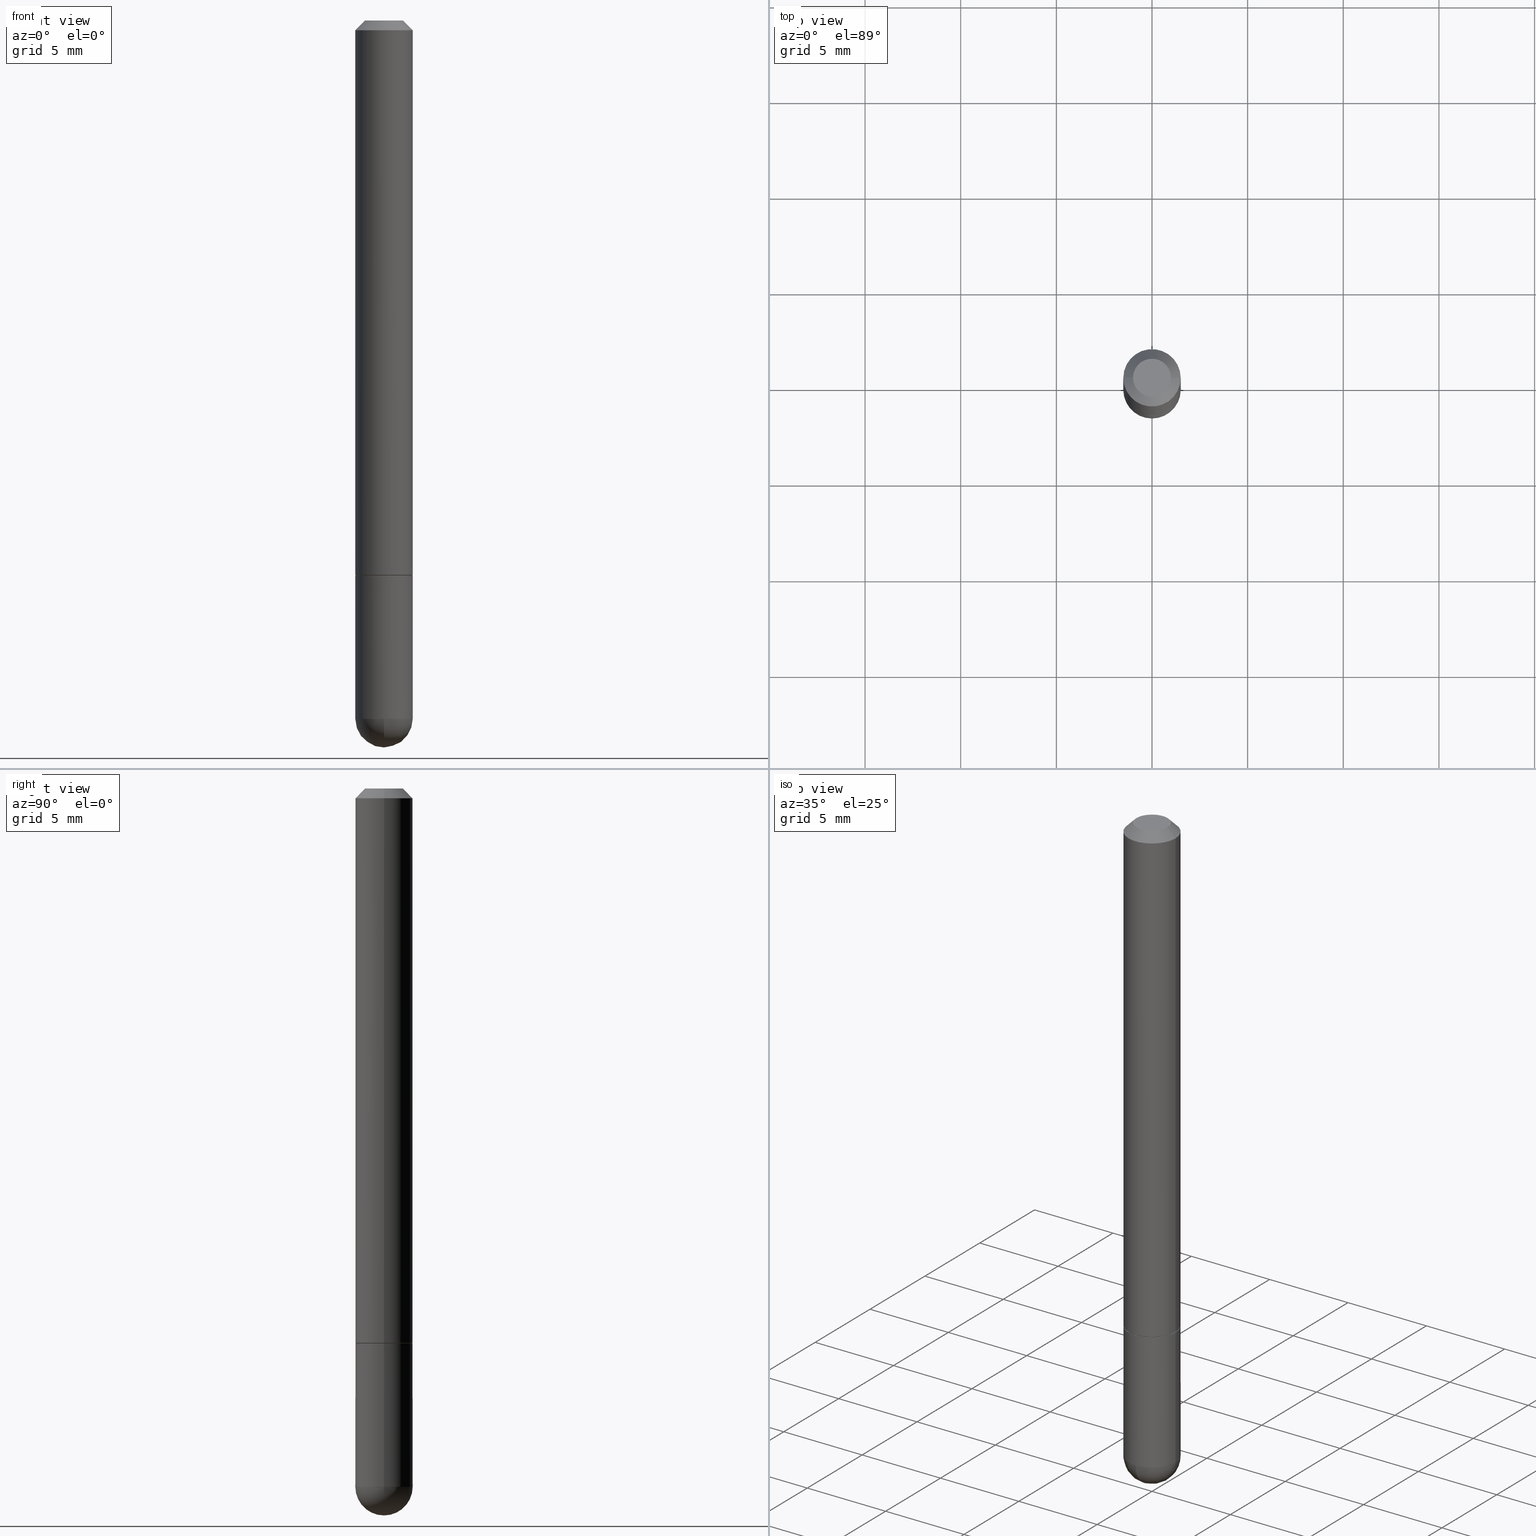
[diagram: canonical four-view strip — front | top / right | iso, engineering-drawing reading convention]
A machine part, canonical four-view strip (front | top / right | iso — engineering-drawing reading convention). The complete STEP part file that produces these views, byte-faithful:
ISO-10303-21;
HEADER;
FILE_DESCRIPTION (( 'STEP AP203' ),
    '1' );
FILE_NAME ('01969.STEP',
    '2024-02-21T16:34:36',
    ( '' ),
    ( '' ),
    'SwSTEP 2.0',
    'SolidWorks 2023',
    '' );
FILE_SCHEMA (( 'CONFIG_CONTROL_DESIGN' ));
ENDSEC;

DATA;
#1 = EDGE_CURVE ( 'NONE', #112, #306, #370, .T. ) ;
#2 = CARTESIAN_POINT ( 'NONE',  ( 2.792236282902188505E-29, -3.986573392691103322E-15, -1.141799999999999926 ) ) ;
#3 = CARTESIAN_POINT ( 'NONE',  ( 0.000000000000000000, 0.000000000000000000, 0.000000000000000000 ) ) ;
#4 = CIRCLE ( 'NONE', #158, 0.05905000000000025506 ) ;
#5 = CARTESIAN_POINT ( 'NONE',  ( -0.05905000000000000526, 3.425143193405111289E-16, -0.02000000000000002123 ) ) ;
#6 = ORIENTED_EDGE ( 'NONE', *, *, #290, .F. ) ;
#7 = EDGE_CURVE ( 'NONE', #365, #232, #308, .T. ) ;
#8 = CARTESIAN_POINT ( 'NONE',  ( -0.05905000000000007465, 4.195754854663396902E-16, -2.904631170795525395E-30 ) ) ;
#9 = ORIENTED_EDGE ( 'NONE', *, *, #78, .T. ) ;
#10 = PERSON_AND_ORGANIZATION ( #188, #404 ) ;
#11 = EDGE_LOOP ( 'NONE', ( #105, #75, #262, #384, #236 ) ) ;
#12 = APPROVAL_ROLE ( '' ) ;
#13 = DIRECTION ( 'NONE',  ( -1.000000000000000000, 7.105427357601001070E-15, -4.926315508542082329E-29 ) ) ;
#14 = ORIENTED_EDGE ( 'NONE', *, *, #141, .T. ) ;
#15 = DATE_AND_TIME ( #167, #82 ) ;
#16 = PRODUCT_DEFINITION ( 'UNKNOWN', '', #159, #322 ) ;
#17 = EDGE_LOOP ( 'NONE', ( #133, #58 ) ) ;
#18 = EDGE_CURVE ( 'NONE', #232, #365, #211, .T. ) ;
#19 = VERTEX_POINT ( 'NONE', #81 ) ;
#20 = CARTESIAN_POINT ( 'NONE',  ( 2.789790814096003463E-29, -3.983081911352260315E-15, -1.140799999999999814 ) ) ;
#21 = ORIENTED_EDGE ( 'NONE', *, *, #390, .T. ) ;
#22 = AXIS2_PLACEMENT_3D ( 'NONE', #259, #263, #354 ) ;
#23 = AXIS2_PLACEMENT_3D ( 'NONE', #407, #179, #139 ) ;
#24 = CARTESIAN_POINT ( 'NONE',  ( -0.05904999999999999832, 4.195754854663391478E-16, -2.904631170795521892E-30 ) ) ;
#25 = DIRECTION ( 'NONE',  ( 1.000000000000000000, -6.982962677686266711E-15, 4.878561691827482436E-29 ) ) ;
#26 = APPLICATION_CONTEXT ( 'configuration controlled 3d designs of mechanical parts and assemblies' ) ;
#27 = CIRCLE ( 'NONE', #109, 0.05905000000000000526 ) ;
#28 = CC_DESIGN_SECURITY_CLASSIFICATION ( #190, ( #159 ) ) ;
#29 = LINE ( 'NONE', #270, #123 ) ;
#30 = CARTESIAN_POINT ( 'NONE',  ( -0.05905000000000001914, -4.082427839871483465E-15, -1.437049999999999939 ) ) ;
#31 = DIRECTION ( 'NONE',  ( -1.000000000000000000, 6.982962677686265922E-15, -4.883557194083112340E-29 ) ) ;
#32 = CARTESIAN_POINT ( 'NONE',  ( 4.123439461174018893E-16, 0.05904999999999601540, -1.141800000000000148 ) ) ;
#33 = ADVANCED_FACE ( 'NONE', ( #396 ), #309, .F. ) ;
#34 = EDGE_LOOP ( 'NONE', ( #298, #391, #14, #145 ) ) ;
#35 = AXIS2_PLACEMENT_3D ( 'NONE', #116, #248, #220 ) ;
#36 = DIRECTION ( 'NONE',  ( -0.7071067811865467956, 2.468850131082249172E-15, -0.7071067811865482389 ) ) ;
#37 = ORIENTED_EDGE ( 'NONE', *, *, #7, .T. ) ;
#38 = PERSON_AND_ORGANIZATION_ROLE ( 'classification_officer' ) ;
#39 = ORIENTED_EDGE ( 'NONE', *, *, #86, .F. ) ;
#40 = COORDINATED_UNIVERSAL_TIME_OFFSET ( 5, 0, .BEHIND. ) ;
#41 = MANIFOLD_SOLID_BREP ( 'Body-Move/Copy2[1]', #284 ) ;
#42 = LINE ( 'NONE', #44, #189 ) ;
#43 = CIRCLE ( 'NONE', #35, 0.03905000000000004301 ) ;
#44 = CARTESIAN_POINT ( 'NONE',  ( -0.05905000000000000526, 3.425143193405111289E-16, -0.02000000000000002123 ) ) ;
#45 = ADVANCED_FACE ( 'NONE', ( #281 ), #71, .T. ) ;
#46 = PERSON_AND_ORGANIZATION ( #188, #404 ) ;
#47 = CYLINDRICAL_SURFACE ( 'NONE', #247, 0.05904999999999999832 ) ;
#48 = EDGE_CURVE ( 'NONE', #140, #347, #104, .T. ) ;
#49 = CALENDAR_DATE ( 2024, 21, 2 ) ;
#50 = CARTESIAN_POINT ( 'NONE',  ( 0.05904999999999999832, -4.398917338808476664E-15, -1.141799999999999926 ) ) ;
#51 = AXIS2_PLACEMENT_3D ( 'NONE', #125, #261, #89 ) ;
#52 = AXIS2_PLACEMENT_3D ( 'NONE', #2, #386, #380 ) ;
#53 = EDGE_CURVE ( 'NONE', #144, #266, #43, .T. ) ;
#54 = DIRECTION ( 'NONE',  ( -2.445468806185136597E-29, 3.491481338843145583E-15, 1.000000000000000000 ) ) ;
#55 = PRODUCT_RELATED_PRODUCT_CATEGORY ( 'detail', '', ( #279 ) ) ;
#56 = ORIENTED_EDGE ( 'NONE', *, *, #141, .F. ) ;
#57 = CC_DESIGN_APPROVAL ( #397, ( #159 ) ) ;
#58 = ORIENTED_EDGE ( 'NONE', *, *, #7, .F. ) ;
#59 = DIRECTION ( 'NONE',  ( 1.000000000000000000, -6.982962677686265922E-15, 4.883557194083112340E-29 ) ) ;
#60 = CARTESIAN_POINT ( 'NONE',  ( 4.890937612370278413E-31, -6.982962677686297772E-17, -0.02000000000000002123 ) ) ;
#61 = CYLINDRICAL_SURFACE ( 'NONE', #169, 0.05904999999999999832 ) ;
#62 = CIRCLE ( 'NONE', #299, 0.05905000000000000526 ) ;
#63 = DIRECTION ( 'NONE',  ( 6.982962677686266711E-15, 1.000000000000000000, 0.000000000000000000 ) ) ;
#64 = CARTESIAN_POINT ( 'NONE',  ( 3.183141170014464762E-29, -5.491615626124592102E-15, -1.437049999999999939 ) ) ;
#65 = ADVANCED_FACE ( 'NONE', ( #343 ), #293, .T. ) ;
#66 = CYLINDRICAL_SURFACE ( 'NONE', #244, 0.05905000000000007465 ) ;
#67 = ORIENTED_EDGE ( 'NONE', *, *, #310, .T. ) ;
#68 = CC_DESIGN_PERSON_AND_ORGANIZATION_ASSIGNMENT ( #173, #273, ( #16 ) ) ;
#69 = DIRECTION ( 'NONE',  ( -2.445468806185136597E-29, 3.491481338843145583E-15, 1.000000000000000000 ) ) ;
#70 = DIRECTION ( 'NONE',  ( 2.445468806185136597E-29, -3.491481338843145583E-15, -1.000000000000000000 ) ) ;
#71 = CONICAL_SURFACE ( 'NONE', #392, 0.05804999999999999744, 0.7853981633976233612 ) ;
#72 = EDGE_LOOP ( 'NONE', ( #215, #119 ) ) ;
#73 = COORDINATED_UNIVERSAL_TIME_OFFSET ( 5, 0, .BEHIND. ) ;
#74 = APPLICATION_CONTEXT ( 'configuration controlled 3d designs of mechanical parts and assemblies' ) ;
#75 = ORIENTED_EDGE ( 'NONE', *, *, #219, .T. ) ;
#76 = ORIENTED_EDGE ( 'NONE', *, *, #219, .F. ) ;
#77 = APPROVAL_STATUS ( 'not_yet_approved' ) ;
#78 = EDGE_CURVE ( 'NONE', #99, #95, #27, .T. ) ;
#79 = DIRECTION ( 'NONE',  ( 0.7071067811866712516, -2.468850131083553553E-15, 0.7071067811864236718 ) ) ;
#80 = DIRECTION ( 'NONE',  ( -2.445468806185136597E-29, 3.491481338843145583E-15, 1.000000000000000000 ) ) ;
#81 = CARTESIAN_POINT ( 'NONE',  ( -0.05904999999999999832, -4.082427839871483465E-15, -1.141799999999999926 ) ) ;
#82 = LOCAL_TIME ( 11, 34, 36.00000000000000000, #73 ) ;
#83 = ORIENTED_EDGE ( 'NONE', *, *, #310, .F. ) ;
#84 = CIRCLE ( 'NONE', #137, 0.05905000000000000526 ) ;
#85 = AXIS2_PLACEMENT_3D ( 'NONE', #286, #389, #237 ) ;
#86 = EDGE_CURVE ( 'NONE', #347, #156, #152, .T. ) ;
#87 = DIRECTION ( 'NONE',  ( 1.000000000000000000, -6.982962677686266711E-15, 4.876176775795936353E-29 ) ) ;
#88 = CALENDAR_DATE ( 2024, 21, 2 ) ;
#89 = DIRECTION ( 'NONE',  ( 1.000000000000000000, -6.982962677686272233E-15, 0.000000000000000000 ) ) ;
#90 = LINE ( 'NONE', #283, #315 ) ;
#91 = CARTESIAN_POINT ( 'NONE',  ( -0.05804999999999999744, -3.568804880234141646E-15, -1.141799999999999704 ) ) ;
#92 = AXIS2_PLACEMENT_3D ( 'NONE', #96, #360, #349 ) ;
#93 = LOCAL_TIME ( 11, 34, 36.00000000000000000, #253 ) ;
#94 = CARTESIAN_POINT ( 'NONE',  ( 0.05905000000000007465, -4.123439461173745750E-16, 2.879382386107504074E-30 ) ) ;
#95 = VERTEX_POINT ( 'NONE', #387 ) ;
#96 = CARTESIAN_POINT ( 'NONE',  ( 3.514260947928350449E-29, -5.017433257984542594E-15, -1.437049999999999939 ) ) ;
#97 = DIRECTION ( 'NONE',  ( 1.000000000000000000, -6.982962677686266711E-15, 4.876176775795936353E-29 ) ) ;
#98 = DIRECTION ( 'NONE',  ( -2.445468806185136597E-29, 3.491481338843145583E-15, 1.000000000000000000 ) ) ;
#99 = VERTEX_POINT ( 'NONE', #30 ) ;
#100 = DIRECTION ( 'NONE',  ( 6.982962677686265922E-15, 1.000000000000000000, -4.626330217890349615E-15 ) ) ;
#101 = EDGE_CURVE ( 'NONE', #95, #112, #369, .T. ) ;
#102 = DATE_TIME_ROLE ( 'classification_date' ) ;
#103 = CLOSED_SHELL ( 'NONE', ( #45, #194, #375, #399, #180, #65, #260, #33 ) ) ;
#104 = CIRCLE ( 'NONE', #398, 0.05905000000000014404 ) ;
#105 = ORIENTED_EDGE ( 'NONE', *, *, #345, .T. ) ;
#106 = APPROVAL_ROLE ( '' ) ;
#107 = ORIENTED_EDGE ( 'NONE', *, *, #53, .T. ) ;
#108 = EDGE_CURVE ( 'NONE', #112, #359, #182, .T. ) ;
#109 = AXIS2_PLACEMENT_3D ( 'NONE', #155, #256, #129 ) ;
#110 = LOCAL_TIME ( 11, 34, 36.00000000000000000, #363 ) ;
#111 = CC_DESIGN_DATE_AND_TIME_ASSIGNMENT ( #208, #102, ( #190 ) ) ;
#112 = VERTEX_POINT ( 'NONE', #228 ) ;
#113 = EDGE_LOOP ( 'NONE', ( #107, #207 ) ) ;
#114 = VECTOR ( 'NONE', #348, 39.37007874015748854 ) ;
#115 = APPROVAL_PERSON_ORGANIZATION ( #295, #222, #187 ) ;
#116 = CARTESIAN_POINT ( 'NONE',  ( 3.131554243005667043E-46, -4.471029511141352822E-32, -1.280553747030126465E-17 ) ) ;
#117 = CC_DESIGN_PERSON_AND_ORGANIZATION_ASSIGNMENT ( #302, #38, ( #190 ) ) ;
#118 = CARTESIAN_POINT ( 'NONE',  ( 4.890937612370278413E-31, -6.982962677686297772E-17, -0.02000000000000002123 ) ) ;
#119 = ORIENTED_EDGE ( 'NONE', *, *, #406, .T. ) ;
#120 = EDGE_CURVE ( 'NONE', #266, #144, #339, .T. ) ;
#121 = LINE ( 'NONE', #379, #114 ) ;
#122 = APPROVAL_STATUS ( 'not_yet_approved' ) ;
#123 = VECTOR ( 'NONE', #79, 39.37007874015748854 ) ;
#124 = CONICAL_SURFACE ( 'NONE', #216, 0.05905000000000000526, 0.7853981633974472798 ) ;
#125 = CARTESIAN_POINT ( 'NONE',  ( 3.514260947928350449E-29, -5.017433257984542594E-15, -1.437049999999999939 ) ) ;
#126 = LENGTH_MEASURE_WITH_UNIT ( LENGTH_MEASURE( 0.02539999999999999897 ), #288 );
#127 = CARTESIAN_POINT ( 'NONE',  ( 3.183141170014464762E-29, -5.491615626124592102E-15, -1.437049999999999939 ) ) ;
#128 = PERSON_AND_ORGANIZATION_ROLE ( 'design_owner' ) ;
#129 = DIRECTION ( 'NONE',  ( 1.000000000000000000, -6.982962677686272233E-15, 0.000000000000000000 ) ) ;
#130 = FACE_OUTER_BOUND ( 'NONE', #135, .T. ) ;
#131 = AXIS2_PLACEMENT_3D ( 'NONE', #181, #291, #358 ) ;
#132 = CARTESIAN_POINT ( 'NONE',  ( 2.792236282902188505E-29, -3.986573392691103322E-15, -1.141799999999999926 ) ) ;
#133 = ORIENTED_EDGE ( 'NONE', *, *, #18, .F. ) ;
#134 = CARTESIAN_POINT ( 'NONE',  ( 4.123439461174083974E-16, 0.05904999999999487742, -1.437050000000000161 ) ) ;
#135 = EDGE_LOOP ( 'NONE', ( #166, #278, #356, #340 ) ) ;
#136 = PERSON_AND_ORGANIZATION_ROLE ( 'creator' ) ;
#137 = AXIS2_PLACEMENT_3D ( 'NONE', #318, #69, #383 ) ;
#138 = PERSON_AND_ORGANIZATION_ROLE ( 'design_supplier' ) ;
#139 = DIRECTION ( 'NONE',  ( -1.000000000000000000, 6.982962677686265922E-15, -4.876176775795935793E-29 ) ) ;
#140 = VERTEX_POINT ( 'NONE', #355 ) ;
#141 = EDGE_CURVE ( 'NONE', #156, #196, #84, .T. ) ;
#142 = APPROVAL_DATE_TIME ( #165, #209 ) ;
#143 = DIRECTION ( 'NONE',  ( -7.105427357601001070E-15, -1.000000000000000000, 0.000000000000000000 ) ) ;
#144 = VERTEX_POINT ( 'NONE', #184 ) ;
#145 = ORIENTED_EDGE ( 'NONE', *, *, #277, .F. ) ;
#146 = ADVANCED_FACE ( 'NONE', ( #289 ), #198, .F. ) ;
#147 = DIRECTION ( 'NONE',  ( -2.445468806185136877E-29, 3.491481338843145188E-15, 1.000000000000000000 ) ) ;
#148 = CARTESIAN_POINT ( 'NONE',  ( 3.183141170014464762E-29, -5.491615626124592102E-15, -1.437049999999999939 ) ) ;
#149 = FACE_OUTER_BOUND ( 'NONE', #336, .T. ) ;
#150 = AXIS2_PLACEMENT_3D ( 'NONE', #276, #213, #175 ) ;
#151 = LOCAL_TIME ( 11, 34, 36.00000000000000000, #40 ) ;
#152 = LINE ( 'NONE', #94, #275 ) ;
#153 = CARTESIAN_POINT ( 'NONE',  ( 3.514260947928350449E-29, -5.017433257984542594E-15, -1.437049999999999939 ) ) ;
#154 = CARTESIAN_POINT ( 'NONE',  ( 3.330070981488499955E-29, -5.694171829508798064E-15, -1.496100000000000207 ) ) ;
#155 = CARTESIAN_POINT ( 'NONE',  ( 3.514260947928350449E-29, -5.017433257984542594E-15, -1.437049999999999939 ) ) ;
#156 = VERTEX_POINT ( 'NONE', #287 ) ;
#157 = APPLICATION_PROTOCOL_DEFINITION ( 'international standard', 'config_control_design', 1994, #26 ) ;
#158 = AXIS2_PLACEMENT_3D ( 'NONE', #127, #59, #63 ) ;
#159 = PRODUCT_DEFINITION_FORMATION_WITH_SPECIFIED_SOURCE ( 'ANY', '', #279, .NOT_KNOWN. ) ;
#160 = LINE ( 'NONE', #8, #238 ) ;
#161 = ORIENTED_EDGE ( 'NONE', *, *, #251, .F. ) ;
#162 = PERSON_AND_ORGANIZATION ( #188, #404 ) ;
#163 = EDGE_CURVE ( 'NONE', #266, #156, #90, .T. ) ;
#164 = EDGE_LOOP ( 'NONE', ( #21, #319, #56, #39 ) ) ;
#165 = DATE_AND_TIME ( #366, #151 ) ;
#166 = ORIENTED_EDGE ( 'NONE', *, *, #274, .F. ) ;
#167 = CALENDAR_DATE ( 2024, 21, 2 ) ;
#168 = EDGE_CURVE ( 'NONE', #395, #359, #4, .T. ) ;
#169 = AXIS2_PLACEMENT_3D ( 'NONE', #186, #252, #225 ) ;
#170 = FACE_OUTER_BOUND ( 'NONE', #17, .T. ) ;
#171 = ORIENTED_EDGE ( 'NONE', *, *, #101, .T. ) ;
#172 = PERSON_AND_ORGANIZATION ( #188, #404 ) ;
#173 = PERSON_AND_ORGANIZATION ( #188, #404 ) ;
#174 = AXIS2_PLACEMENT_3D ( 'NONE', #212, #394, #206 ) ;
#175 = DIRECTION ( 'NONE',  ( 1.000000000000000000, -6.982962677686272233E-15, 0.000000000000000000 ) ) ;
#176 = LOCAL_TIME ( 11, 34, 36.00000000000000000, #331 ) ;
#177 = MANIFOLD_SOLID_BREP ( 'Body-Move/Copy2[2]', #103 ) ;
#178 = CARTESIAN_POINT ( 'NONE',  ( 0.05904999999999999832, -4.123439461173740327E-16, 2.879382386107500220E-30 ) ) ;
#179 = DIRECTION ( 'NONE',  ( 2.438088387897960049E-29, -3.491481338843145188E-15, -1.000000000000000000 ) ) ;
#180 = ADVANCED_FACE ( 'NONE', ( #149 ), #191, .T. ) ;
#181 = CARTESIAN_POINT ( 'NONE',  ( 2.792236282902187945E-29, -3.986573392691102533E-15, -1.141799999999999704 ) ) ;
#182 = CIRCLE ( 'NONE', #51, 0.05905000000000000526 ) ;
#183 = DIRECTION ( 'NONE',  ( -2.445468806185136877E-29, 3.491481338843145188E-15, 1.000000000000000000 ) ) ;
#184 = CARTESIAN_POINT ( 'NONE',  ( -0.03905000000000004301, 3.075995059520800222E-16, -1.280553747030329227E-17 ) ) ;
#185 =( NAMED_UNIT ( * ) SI_UNIT ( $, .STERADIAN. ) SOLID_ANGLE_UNIT ( ) );
#186 = CARTESIAN_POINT ( 'NONE',  ( 0.000000000000000000, 0.000000000000000000, 0.000000000000000000 ) ) ;
#187 = APPROVAL_ROLE ( '' ) ;
#188 = PERSON ( 'UNSPECIFIED', 'UNSPECIFIED', 'UNSPECIFIED', ('UNSPECIFIED'), ('UNSPECIFIED'), ('UNSPECIFIED') ) ;
#189 = VECTOR ( 'NONE', #36, 39.37007874015748143 ) ;
#190 = SECURITY_CLASSIFICATION ( '', '', #393 ) ;
#191 = CYLINDRICAL_SURFACE ( 'NONE', #303, 0.05905000000000007465 ) ;
#192 = DIRECTION ( 'NONE',  ( -2.445468806185136597E-29, 3.491481338843145583E-15, 1.000000000000000000 ) ) ;
#193 = CC_DESIGN_DATE_AND_TIME_ASSIGNMENT ( #15, #203, ( #16 ) ) ;
#194 = ADVANCED_FACE ( 'NONE', ( #316 ), #66, .T. ) ;
#195 = DIRECTION ( 'NONE',  ( 1.000000000000000000, -6.982962677686266711E-15, 4.876176775795936353E-29 ) ) ;
#196 = VERTEX_POINT ( 'NONE', #5 ) ;
#197 = FACE_OUTER_BOUND ( 'NONE', #361, .T. ) ;
#198 = PLANE ( 'NONE',  #324 ) ;
#199 = EDGE_CURVE ( 'NONE', #306, #19, #269, .T. ) ;
#200 = ORIENTED_EDGE ( 'NONE', *, *, #277, .T. ) ;
#201 = VECTOR ( 'NONE', #147, 39.37007874015748143 ) ;
#202 = DIMENSIONAL_EXPONENTS ( 1.000000000000000000, 0.000000000000000000, 0.000000000000000000, 0.000000000000000000, 0.000000000000000000, 0.000000000000000000, 0.000000000000000000 ) ;
#203 = DATE_TIME_ROLE ( 'creation_date' ) ;
#204 = ORIENTED_EDGE ( 'NONE', *, *, #53, .F. ) ;
#205 = DATE_AND_TIME ( #88, #93 ) ;
#206 = DIRECTION ( 'NONE',  ( 1.000000000000000000, -6.982962677686265922E-15, 4.876176775795935793E-29 ) ) ;
#207 = ORIENTED_EDGE ( 'NONE', *, *, #120, .T. ) ;
#208 = DATE_AND_TIME ( #329, #176 ) ;
#209 = APPROVAL ( #77, 'UNSPECIFIED' ) ;
#210 = CONICAL_SURFACE ( 'NONE', #22, 0.05905000000000000526, 0.7853981633974472798 ) ;
#211 = CIRCLE ( 'NONE', #223, 0.05804999999999999744 ) ;
#212 = CARTESIAN_POINT ( 'NONE',  ( 2.792236282902188505E-29, -3.986573392691103322E-15, -1.141799999999999926 ) ) ;
#213 = DIRECTION ( 'NONE',  ( -2.445468806185136597E-29, 3.491481338843145583E-15, 1.000000000000000000 ) ) ;
#214 = SPHERICAL_SURFACE ( 'NONE', #403, 0.05905000000000025506 ) ;
#215 = ORIENTED_EDGE ( 'NONE', *, *, #199, .T. ) ;
#216 = AXIS2_PLACEMENT_3D ( 'NONE', #60, #70, #357 ) ;
#217 = DIRECTION ( 'NONE',  ( 1.000000000000000000, -6.982962677686267499E-15, 0.000000000000000000 ) ) ;
#218 = DIRECTION ( 'NONE',  ( -2.445468806185136597E-29, 3.491481338843145583E-15, 1.000000000000000000 ) ) ;
#219 = EDGE_CURVE ( 'NONE', #99, #19, #254, .T. ) ;
#220 = DIRECTION ( 'NONE',  ( 1.000000000000000000, -6.982962677686266711E-15, 4.878561691827482436E-29 ) ) ;
#221 = FACE_OUTER_BOUND ( 'NONE', #11, .T. ) ;
#222 = APPROVAL ( #122, 'UNSPECIFIED' ) ;
#223 = AXIS2_PLACEMENT_3D ( 'NONE', #282, #218, #342 ) ;
#224 = CIRCLE ( 'NONE', #52, 0.05904999999999999832 ) ;
#225 = DIRECTION ( 'NONE',  ( 1.000000000000000000, -6.982962677686266711E-15, 4.876176775795936353E-29 ) ) ;
#226 = DIRECTION ( 'NONE',  ( -1.000000000000000000, 6.982962677686265922E-15, -4.883557194083112340E-29 ) ) ;
#227 = FACE_OUTER_BOUND ( 'NONE', #402, .T. ) ;
#228 = CARTESIAN_POINT ( 'NONE',  ( 0.05905000000000001914, -4.914347271455197089E-15, -1.437049999999999939 ) ) ;
#229 = FACE_OUTER_BOUND ( 'NONE', #34, .T. ) ;
#230 = APPROVAL_PERSON_ORGANIZATION ( #172, #209, #106 ) ;
#231 = DIRECTION ( 'NONE',  ( -2.445468806185136597E-29, 3.491481338843145583E-15, 1.000000000000000000 ) ) ;
#232 = VERTEX_POINT ( 'NONE', #408 ) ;
#233 = EDGE_CURVE ( 'NONE', #365, #140, #121, .T. ) ;
#234 = DIRECTION ( 'NONE',  ( -2.445468806185136597E-29, 3.491481338843145583E-15, 1.000000000000000000 ) ) ;
#235 = UNCERTAINTY_MEASURE_WITH_UNIT (LENGTH_MEASURE( 1.000000000000000082E-05 ), #255, 'distance_accuracy_value', 'NONE');
#236 = ORIENTED_EDGE ( 'NONE', *, *, #108, .T. ) ;
#237 = DIRECTION ( 'NONE',  ( 1.000000000000000000, 0.000000000000000000, 0.000000000000000000 ) ) ;
#238 = VECTOR ( 'NONE', #264, 39.37007874015748143 ) ;
#239 = CARTESIAN_POINT ( 'NONE',  ( 0.03905000000000004301, -3.714222401791252845E-16, -1.280553747029901208E-17 ) ) ;
#240 = ORIENTED_EDGE ( 'NONE', *, *, #233, .T. ) ;
#241 = APPROVAL_DATE_TIME ( #327, #397 ) ;
#242 = ORIENTED_EDGE ( 'NONE', *, *, #274, .T. ) ;
#243 = EDGE_LOOP ( 'NONE', ( #388, #37, #246, #326 ) ) ;
#244 = AXIS2_PLACEMENT_3D ( 'NONE', #377, #234, #195 ) ;
#245 = ADVANCED_FACE ( 'NONE', ( #227 ), #61, .T. ) ;
#246 = ORIENTED_EDGE ( 'NONE', *, *, #251, .T. ) ;
#247 = AXIS2_PLACEMENT_3D ( 'NONE', #3, #80, #97 ) ;
#248 = DIRECTION ( 'NONE',  ( -2.445468806185136597E-29, 3.491481338843145583E-15, 1.000000000000000000 ) ) ;
#249 = DIRECTION ( 'NONE',  ( -2.445468806185136597E-29, 3.491481338843145583E-15, 1.000000000000000000 ) ) ;
#250 = ORIENTED_EDGE ( 'NONE', *, *, #345, .F. ) ;
#251 = EDGE_CURVE ( 'NONE', #232, #347, #29, .T. ) ;
#252 = DIRECTION ( 'NONE',  ( -2.445468806185136597E-29, 3.491481338843145583E-15, 1.000000000000000000 ) ) ;
#253 = COORDINATED_UNIVERSAL_TIME_OFFSET ( 5, 0, .BEHIND. ) ;
#254 = LINE ( 'NONE', #24, #201 ) ;
#255 =( CONVERSION_BASED_UNIT ( 'INCH', #126 ) LENGTH_UNIT ( ) NAMED_UNIT ( #202 ) );
#256 = DIRECTION ( 'NONE',  ( -2.445468806185136597E-29, 3.491481338843145583E-15, 1.000000000000000000 ) ) ;
#257 = CARTESIAN_POINT ( 'NONE',  ( 0.05905000000000014404, -4.395425857469635235E-15, -1.140799999999999814 ) ) ;
#258 = DIRECTION ( 'NONE',  ( 0.7071067811865467956, -7.319954787623254468E-15, -0.7071067811865482389 ) ) ;
#259 = CARTESIAN_POINT ( 'NONE',  ( 4.890937612370278413E-31, -6.982962677686297772E-17, -0.02000000000000002123 ) ) ;
#260 = ADVANCED_FACE ( 'NONE', ( #170 ), #321, .F. ) ;
#261 = DIRECTION ( 'NONE',  ( -2.445468806185136597E-29, 3.491481338843145583E-15, 1.000000000000000000 ) ) ;
#262 = ORIENTED_EDGE ( 'NONE', *, *, #199, .F. ) ;
#263 = DIRECTION ( 'NONE',  ( 2.445468806185136597E-29, -3.491481338843145583E-15, -1.000000000000000000 ) ) ;
#264 = DIRECTION ( 'NONE',  ( -2.445468806185136877E-29, 3.491481338843145188E-15, 1.000000000000000000 ) ) ;
#265 = ORIENTED_EDGE ( 'NONE', *, *, #406, .F. ) ;
#266 = VERTEX_POINT ( 'NONE', #239 ) ;
#267 = CC_DESIGN_APPROVAL ( #222, ( #16 ) ) ;
#268 = APPROVAL_DATE_TIME ( #205, #222 ) ;
#269 = CIRCLE ( 'NONE', #376, 0.05904999999999999832 ) ;
#270 = CARTESIAN_POINT ( 'NONE',  ( 0.05804999999999999744, -4.391934376130790650E-15, -1.141799999999999704 ) ) ;
#271 = ORIENTED_EDGE ( 'NONE', *, *, #1, .T. ) ;
#272 = DIRECTION ( 'NONE',  ( -2.445468806185136597E-29, 3.491481338843145583E-15, 1.000000000000000000 ) ) ;
#273 = PERSON_AND_ORGANIZATION_ROLE ( 'creator' ) ;
#274 = EDGE_CURVE ( 'NONE', #395, #95, #371, .T. ) ;
#275 = VECTOR ( 'NONE', #411, 39.37007874015748143 ) ;
#276 = CARTESIAN_POINT ( 'NONE',  ( 2.792236282902187945E-29, -3.986573392691102533E-15, -1.141799999999999704 ) ) ;
#277 = EDGE_CURVE ( 'NONE', #144, #196, #42, .T. ) ;
#278 = ORIENTED_EDGE ( 'NONE', *, *, #168, .T. ) ;
#279 = PRODUCT ( '01969', '01969', '', ( #325 ) ) ;
#280 = CIRCLE ( 'NONE', #92, 0.05905000000000000526 ) ;
#281 = FACE_OUTER_BOUND ( 'NONE', #292, .T. ) ;
#282 = CARTESIAN_POINT ( 'NONE',  ( 2.792236282902187945E-29, -3.986573392691102533E-15, -1.141799999999999704 ) ) ;
#283 = CARTESIAN_POINT ( 'NONE',  ( 0.05905000000000000526, -4.749420335452719692E-16, -0.02000000000000002123 ) ) ;
#284 = CLOSED_SHELL ( 'NONE', ( #301, #333, #368, #146, #245 ) ) ;
#285 = DIRECTION ( 'NONE',  ( -2.445468806185136597E-29, 3.491481338843145583E-15, 1.000000000000000000 ) ) ;
#286 = CARTESIAN_POINT ( 'NONE',  ( 0.000000000000000000, 0.000000000000000000, 0.000000000000000000 ) ) ;
#287 = CARTESIAN_POINT ( 'NONE',  ( 0.05905000000000000526, -4.749420335452719692E-16, -0.02000000000000002123 ) ) ;
#288 =( LENGTH_UNIT ( ) NAMED_UNIT ( * ) SI_UNIT ( $, .METRE. ) );
#289 = FACE_OUTER_BOUND ( 'NONE', #72, .T. ) ;
#290 = EDGE_CURVE ( 'NONE', #140, #196, #160, .T. ) ;
#291 = DIRECTION ( 'NONE',  ( -2.445468806185136597E-29, 3.491481338843145583E-15, 1.000000000000000000 ) ) ;
#292 = EDGE_LOOP ( 'NONE', ( #372, #240, #323, #161 ) ) ;
#293 = CONICAL_SURFACE ( 'NONE', #131, 0.05804999999999999744, 0.7853981633976233612 ) ;
#294 = ORIENTED_EDGE ( 'NONE', *, *, #168, .F. ) ;
#295 = PERSON_AND_ORGANIZATION ( #188, #404 ) ;
#296 = ORIENTED_EDGE ( 'NONE', *, *, #86, .T. ) ;
#297 = APPROVAL_STATUS ( 'not_yet_approved' ) ;
#298 = ORIENTED_EDGE ( 'NONE', *, *, #120, .F. ) ;
#299 = AXIS2_PLACEMENT_3D ( 'NONE', #118, #249, #217 ) ;
#300 = SHAPE_DEFINITION_REPRESENTATION ( #305, #341 ) ;
#301 = ADVANCED_FACE ( 'NONE', ( #221 ), #47, .T. ) ;
#302 = PERSON_AND_ORGANIZATION ( #188, #404 ) ;
#303 = AXIS2_PLACEMENT_3D ( 'NONE', #350, #311, #87 ) ;
#304 = ORIENTED_EDGE ( 'NONE', *, *, #163, .F. ) ;
#305 = PRODUCT_DEFINITION_SHAPE ( 'NONE', 'NONE',  #16 ) ;
#306 = VERTEX_POINT ( 'NONE', #50 ) ;
#307 = DIRECTION ( 'NONE',  ( 1.000000000000000000, -6.982962677686263555E-15, 0.000000000000000000 ) ) ;
#308 = CIRCLE ( 'NONE', #150, 0.05804999999999999744 ) ;
#309 = PLANE ( 'NONE',  #23 ) ;
#310 = EDGE_CURVE ( 'NONE', #196, #156, #62, .T. ) ;
#311 = DIRECTION ( 'NONE',  ( -2.445468806185136597E-29, 3.491481338843145583E-15, 1.000000000000000000 ) ) ;
#312 = CC_DESIGN_PERSON_AND_ORGANIZATION_ASSIGNMENT ( #335, #138, ( #159 ) ) ;
#313 = SPHERICAL_SURFACE ( 'NONE', #332, 0.05905000000000025506 ) ;
#314 = CARTESIAN_POINT ( 'NONE',  ( 3.131554243005667043E-46, -4.471029511141352822E-32, -1.280553747030126465E-17 ) ) ;
#315 = VECTOR ( 'NONE', #258, 39.37007874015748143 ) ;
#316 = FACE_OUTER_BOUND ( 'NONE', #164, .T. ) ;
#317 = DIRECTION ( 'NONE',  ( 1.000000000000000000, -6.982962677686263555E-15, 0.000000000000000000 ) ) ;
#318 = CARTESIAN_POINT ( 'NONE',  ( 4.890937612370278413E-31, -6.982962677686297772E-17, -0.02000000000000002123 ) ) ;
#319 = ORIENTED_EDGE ( 'NONE', *, *, #290, .T. ) ;
#320 = DIRECTION ( 'NONE',  ( 6.982962677686265922E-15, 1.000000000000000000, -4.626330217890349615E-15 ) ) ;
#321 = PLANE ( 'NONE',  #174 ) ;
#322 = DESIGN_CONTEXT ( 'detailed design', #74, 'design' ) ;
#323 = ORIENTED_EDGE ( 'NONE', *, *, #390, .F. ) ;
#324 = AXIS2_PLACEMENT_3D ( 'NONE', #32, #381, #352 ) ;
#325 = MECHANICAL_CONTEXT ( 'NONE', #26, 'mechanical' ) ;
#326 = ORIENTED_EDGE ( 'NONE', *, *, #48, .F. ) ;
#327 = DATE_AND_TIME ( #49, #110 ) ;
#328 = EDGE_LOOP ( 'NONE', ( #294, #242, #405, #250 ) ) ;
#329 = CALENDAR_DATE ( 2024, 21, 2 ) ;
#330 = CC_DESIGN_PERSON_AND_ORGANIZATION_ASSIGNMENT ( #10, #136, ( #159 ) ) ;
#331 = COORDINATED_UNIVERSAL_TIME_OFFSET ( 5, 0, .BEHIND. ) ;
#332 = AXIS2_PLACEMENT_3D ( 'NONE', #64, #31, #100 ) ;
#333 = ADVANCED_FACE ( 'NONE', ( #373 ), #214, .T. ) ;
#334 = CARTESIAN_POINT ( 'NONE',  ( 3.183141170014464762E-29, -5.491615626124592102E-15, -1.437049999999999939 ) ) ;
#335 = PERSON_AND_ORGANIZATION ( #188, #404 ) ;
#336 = EDGE_LOOP ( 'NONE', ( #6, #367, #296, #83 ) ) ;
#337 = AXIS2_PLACEMENT_3D ( 'NONE', #382, #192, #317 ) ;
#338 = VECTOR ( 'NONE', #183, 39.37007874015748143 ) ;
#339 = CIRCLE ( 'NONE', #344, 0.03905000000000004301 ) ;
#340 = ORIENTED_EDGE ( 'NONE', *, *, #101, .F. ) ;
#341 = ADVANCED_BREP_SHAPE_REPRESENTATION ( '01969', ( #41, #177, #85 ), #353 ) ;
#342 = DIRECTION ( 'NONE',  ( 1.000000000000000000, -6.982962677686272233E-15, 0.000000000000000000 ) ) ;
#343 = FACE_OUTER_BOUND ( 'NONE', #243, .T. ) ;
#344 = AXIS2_PLACEMENT_3D ( 'NONE', #314, #98, #25 ) ;
#345 = EDGE_CURVE ( 'NONE', #359, #99, #280, .T. ) ;
#346 = CC_DESIGN_APPROVAL ( #209, ( #190 ) ) ;
#347 = VERTEX_POINT ( 'NONE', #257 ) ;
#348 = DIRECTION ( 'NONE',  ( -0.7071067811866712516, 7.493145998870800655E-15, 0.7071067811864236718 ) ) ;
#349 = DIRECTION ( 'NONE',  ( 1.000000000000000000, -6.982962677686272233E-15, 0.000000000000000000 ) ) ;
#350 = CARTESIAN_POINT ( 'NONE',  ( 0.000000000000000000, 0.000000000000000000, 0.000000000000000000 ) ) ;
#351 = APPLICATION_PROTOCOL_DEFINITION ( 'international standard', 'config_control_design', 1994, #74 ) ;
#352 = DIRECTION ( 'NONE',  ( -1.000000000000000000, 6.982962677686265922E-15, -4.876176775795935793E-29 ) ) ;
#353 =( GEOMETRIC_REPRESENTATION_CONTEXT ( 3 ) GLOBAL_UNCERTAINTY_ASSIGNED_CONTEXT ( ( #235 ) ) GLOBAL_UNIT_ASSIGNED_CONTEXT ( ( #255, #378, #185 ) ) REPRESENTATION_CONTEXT ( 'NONE', 'WORKASPACE' ) );
#354 = DIRECTION ( 'NONE',  ( -1.000000000000000000, 6.982962677686267499E-15, 0.000000000000000000 ) ) ;
#355 = CARTESIAN_POINT ( 'NONE',  ( -0.05905000000000014404, -1.606880283598219355E-15, -1.140799999999999814 ) ) ;
#356 = ORIENTED_EDGE ( 'NONE', *, *, #108, .F. ) ;
#357 = DIRECTION ( 'NONE',  ( -1.000000000000000000, 6.982962677686267499E-15, 0.000000000000000000 ) ) ;
#358 = DIRECTION ( 'NONE',  ( 1.000000000000000000, -6.982962677686272233E-15, 0.000000000000000000 ) ) ;
#359 = VERTEX_POINT ( 'NONE', #134 ) ;
#360 = DIRECTION ( 'NONE',  ( -2.445468806185136597E-29, 3.491481338843145583E-15, 1.000000000000000000 ) ) ;
#361 = EDGE_LOOP ( 'NONE', ( #304, #204, #200, #67 ) ) ;
#362 = AXIS2_PLACEMENT_3D ( 'NONE', #153, #231, #412 ) ;
#363 = COORDINATED_UNIVERSAL_TIME_OFFSET ( 5, 0, .BEHIND. ) ;
#364 = APPROVAL_PERSON_ORGANIZATION ( #46, #397, #12 ) ;
#365 = VERTEX_POINT ( 'NONE', #91 ) ;
#366 = CALENDAR_DATE ( 2024, 21, 2 ) ;
#367 = ORIENTED_EDGE ( 'NONE', *, *, #48, .T. ) ;
#368 = ADVANCED_FACE ( 'NONE', ( #130 ), #313, .T. ) ;
#369 = CIRCLE ( 'NONE', #362, 0.05905000000000000526 ) ;
#370 = LINE ( 'NONE', #178, #338 ) ;
#371 = CIRCLE ( 'NONE', #409, 0.05905000000000025506 ) ;
#372 = ORIENTED_EDGE ( 'NONE', *, *, #18, .T. ) ;
#373 = FACE_OUTER_BOUND ( 'NONE', #328, .T. ) ;
#374 = DIRECTION ( 'NONE',  ( 1.000000000000000000, -6.982962677686272233E-15, 0.000000000000000000 ) ) ;
#375 = ADVANCED_FACE ( 'NONE', ( #229 ), #210, .T. ) ;
#376 = AXIS2_PLACEMENT_3D ( 'NONE', #132, #285, #410 ) ;
#377 = CARTESIAN_POINT ( 'NONE',  ( 0.000000000000000000, 0.000000000000000000, 0.000000000000000000 ) ) ;
#378 =( NAMED_UNIT ( * ) PLANE_ANGLE_UNIT ( ) SI_UNIT ( $, .RADIAN. ) );
#379 = CARTESIAN_POINT ( 'NONE',  ( -0.05804999999999999744, -3.574103334582364048E-15, -1.141799999999999704 ) ) ;
#380 = DIRECTION ( 'NONE',  ( 1.000000000000000000, -6.982962677686265133E-15, 0.000000000000000000 ) ) ;
#381 = DIRECTION ( 'NONE',  ( 2.438088387897960049E-29, -3.491481338843145188E-15, -1.000000000000000000 ) ) ;
#382 = CARTESIAN_POINT ( 'NONE',  ( 2.789790814096003463E-29, -3.983081911352260315E-15, -1.140799999999999814 ) ) ;
#383 = DIRECTION ( 'NONE',  ( 1.000000000000000000, -6.982962677686267499E-15, 0.000000000000000000 ) ) ;
#384 = ORIENTED_EDGE ( 'NONE', *, *, #1, .F. ) ;
#385 = CIRCLE ( 'NONE', #337, 0.05905000000000014404 ) ;
#386 = DIRECTION ( 'NONE',  ( -2.445468806185136597E-29, 3.491481338843145583E-15, 1.000000000000000000 ) ) ;
#387 = CARTESIAN_POINT ( 'NONE',  ( -4.195754854663065087E-16, -0.05905000000000538291, -1.437049999999999716 ) ) ;
#388 = ORIENTED_EDGE ( 'NONE', *, *, #233, .F. ) ;
#389 = DIRECTION ( 'NONE',  ( 0.000000000000000000, 0.000000000000000000, 1.000000000000000000 ) ) ;
#390 = EDGE_CURVE ( 'NONE', #347, #140, #385, .T. ) ;
#391 = ORIENTED_EDGE ( 'NONE', *, *, #163, .T. ) ;
#392 = AXIS2_PLACEMENT_3D ( 'NONE', #401, #272, #374 ) ;
#393 = SECURITY_CLASSIFICATION_LEVEL ( 'unclassified' ) ;
#394 = DIRECTION ( 'NONE',  ( -2.438088387897960049E-29, 3.491481338843145188E-15, 1.000000000000000000 ) ) ;
#395 = VERTEX_POINT ( 'NONE', #154 ) ;
#396 = FACE_OUTER_BOUND ( 'NONE', #113, .T. ) ;
#397 = APPROVAL ( #297, 'UNSPECIFIED' ) ;
#398 = AXIS2_PLACEMENT_3D ( 'NONE', #20, #54, #307 ) ;
#399 = ADVANCED_FACE ( 'NONE', ( #197 ), #124, .T. ) ;
#400 = CC_DESIGN_PERSON_AND_ORGANIZATION_ASSIGNMENT ( #162, #128, ( #279 ) ) ;
#401 = CARTESIAN_POINT ( 'NONE',  ( 2.792236282902187945E-29, -3.986573392691102533E-15, -1.141799999999999704 ) ) ;
#402 = EDGE_LOOP ( 'NONE', ( #76, #9, #171, #271, #265 ) ) ;
#403 = AXIS2_PLACEMENT_3D ( 'NONE', #148, #226, #320 ) ;
#404 = ORGANIZATION ( 'UNSPECIFIED', 'UNSPECIFIED', '' ) ;
#405 = ORIENTED_EDGE ( 'NONE', *, *, #78, .F. ) ;
#406 = EDGE_CURVE ( 'NONE', #19, #306, #224, .T. ) ;
#407 = CARTESIAN_POINT ( 'NONE',  ( 2.726846925636489647E-16, 0.03905000000000004301, -1.427451150169756154E-16 ) ) ;
#408 = CARTESIAN_POINT ( 'NONE',  ( 0.05804999999999999744, -4.391934376130790650E-15, -1.141799999999999704 ) ) ;
#409 = AXIS2_PLACEMENT_3D ( 'NONE', #334, #13, #143 ) ;
#410 = DIRECTION ( 'NONE',  ( 1.000000000000000000, -6.982962677686265133E-15, 0.000000000000000000 ) ) ;
#411 = DIRECTION ( 'NONE',  ( -2.445468806185136877E-29, 3.491481338843145188E-15, 1.000000000000000000 ) ) ;
#412 = DIRECTION ( 'NONE',  ( 1.000000000000000000, -6.982962677686272233E-15, 0.000000000000000000 ) ) ;
ENDSEC;
END-ISO-10303-21;
